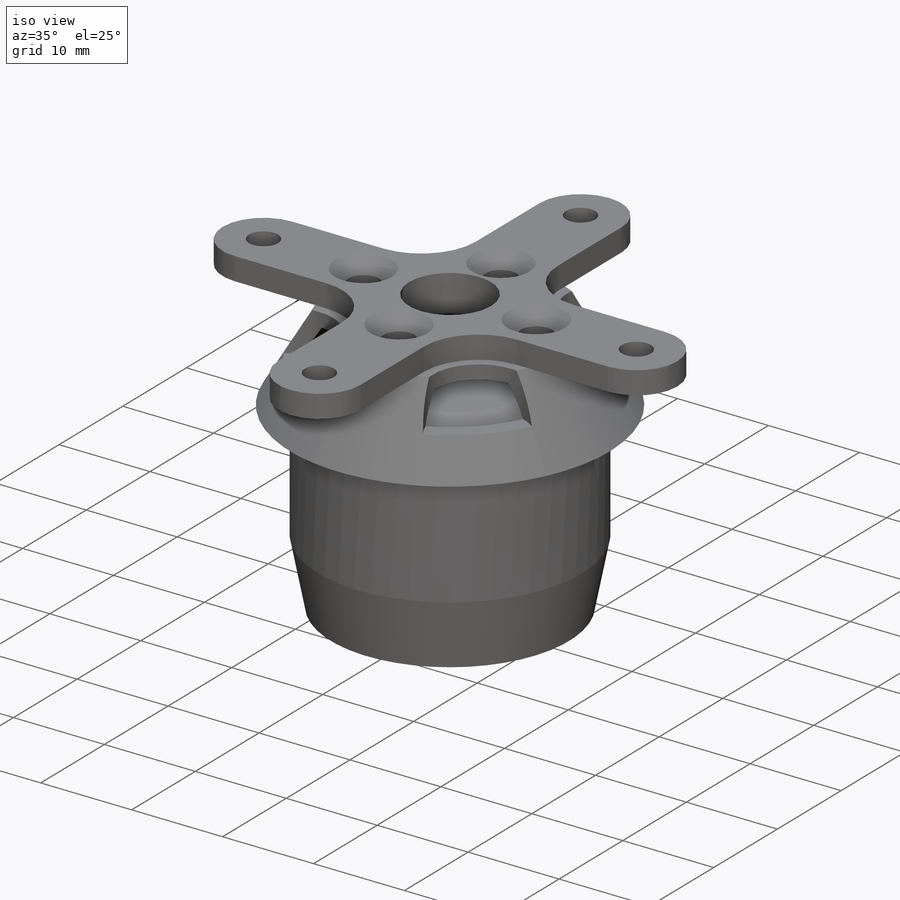
[diagram: iso view]
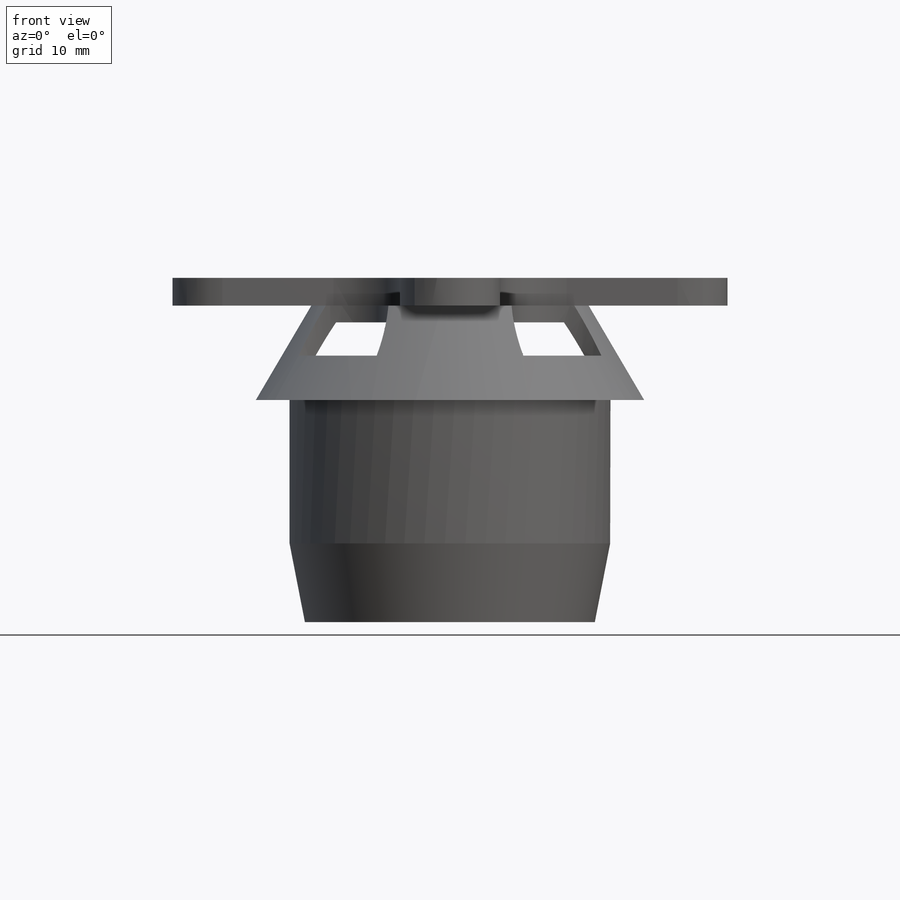
[diagram: front view]
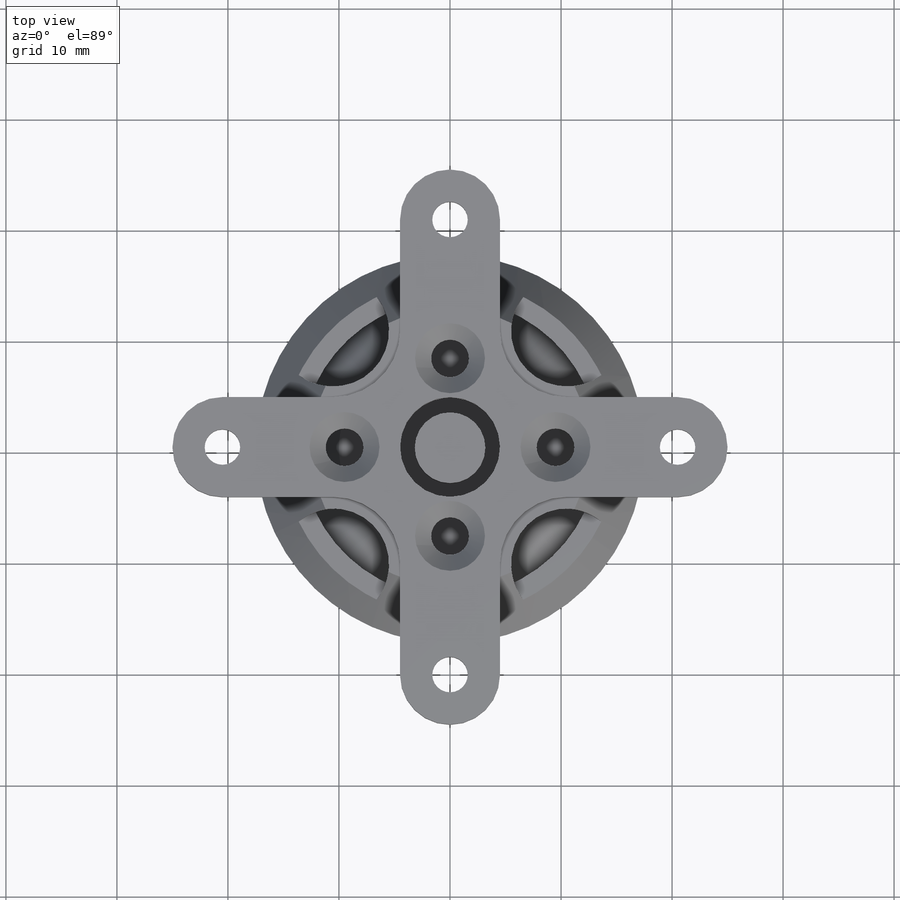
[diagram: top view]
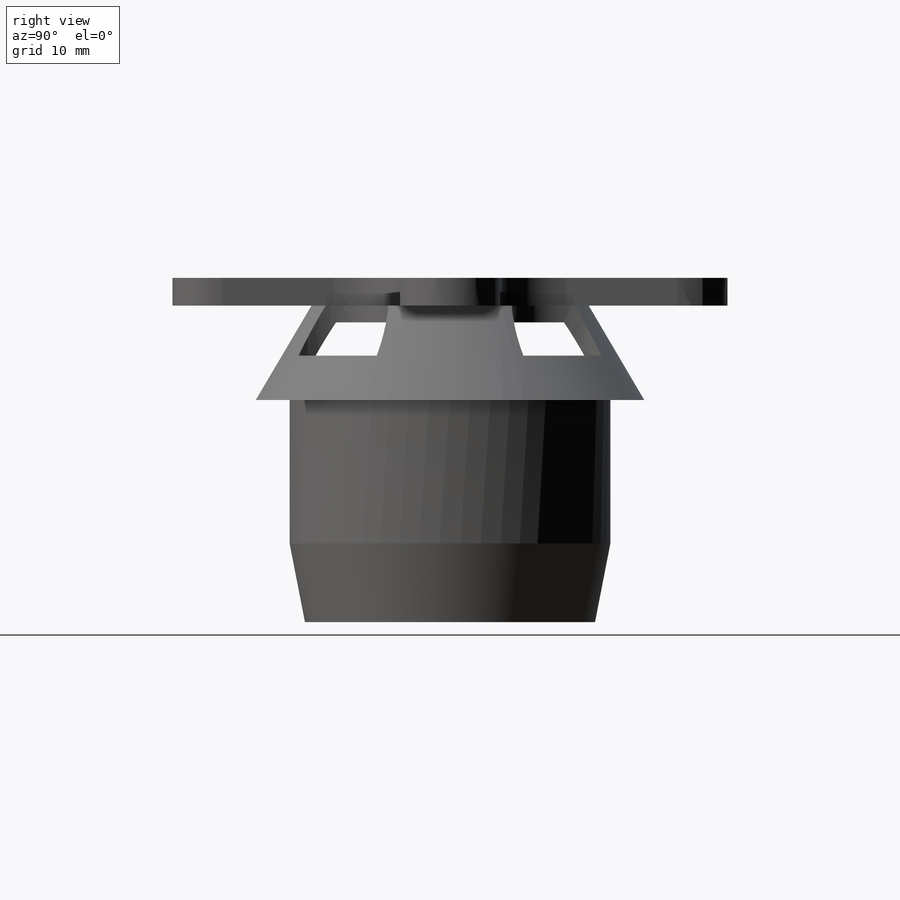
[diagram: right view]
SOLIDWORKS PART (.sldprt)
format: sldprt  version: not decoded by parser v0  size: 611,840 bytes
history: native  units: mm
features: sketch x10, plane x3, cut_extrude x3, revolve x2, material x1, extrude x1, cut_revolve x1, hole x1 (+9 scaffold rows collapsed)
feature tree (31):
  scaffold x9  (default folders/planes/origin — collapsed)
  material  "Material <não especificado>"
  plane  "Plano frontal"
  plane  "Plano superior"
  plane  "Plano direito"
  sketch  "Sketch2"  dims[D1=50.0mm D2=9.0mm D3=3.2mm D6=6.0mm D4=20.5mm D5=4.0]
  extrude  "Boss-Extrude1"  Depth=2.5mm
  sketch  "Sketch3"  dims[D1=35.0mm D2=25.0mm D3=8.5mm]
  revolve  "Revolve1"  Angle=360deg
  sketch  "Sketch4"  dims[D3=3.0mm D1=16.0mm D2=19.0mm]
  cut_extrude  "Cut-Extrude1"  [1 undecoded]
  sketch  "Sketch5"  dims[D2=1.0mm D1=4.0]
  cut_extrude  "Cut-Extrude2"  Depth=4.5mm
  sketch  "Sketch6"  dims[D1=1.5mm D2=1.5mm]
  cut_revolve  "Cut-Revolve1"  Angle=360deg
  sketch  "Sketch7"
  cut_extrude  "Cut-Extrude3"  [1 undecoded]
  hole  "CSK for M3 Flat Head Machine Screw1"  Diameter=3.4mm Depth=11mm
  sketch  "Sketch9"
  sketch  "Sketch8"  dims[hole-wizard template sketch: 55 standard entries collapsed; hole parameters kept: c17.Thru Hole Depth=11.0mm c17.Near C'Sink Dia.=6.3mm c17.D4=~3.666174mm c17.Near C'Sink Angle=90.0deg]
  sketch  "Sketch10"  dims[D1=3.0mm]
  revolve  "Revolve2"  Angle=360deg
  sketch  "Esboço1"
decode coverage: 13 of 18 modeling features carry decoded parameters
note: ~ marks probable driven/reference dimensions
note: 2 parameter values undecoded
note: suppression state not decoded; provenance and decode notes live in map.json
